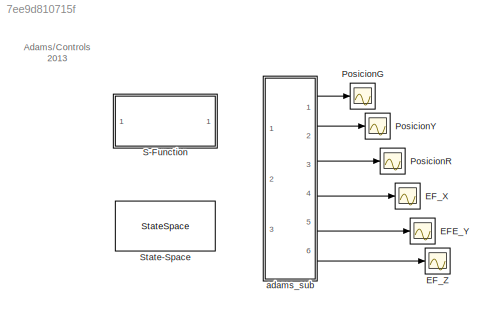
MODEL slx_7ee9d810715f
KIND model
BLOCK [Scope] EFE_Y    
  Floating = off
  NumInputPorts = 1
  Ports = [1]
  ShowLegends = off
BLOCK [Scope] EF_X     
  Floating = off
  NumInputPorts = 1
  Ports = [1]
  ShowLegends = off
BLOCK [Scope] EF_Z     
  Floating = off
  NumInputPorts = 1
  Ports = [1]
  ShowLegends = off
BLOCK [Scope] PosicionG
  Floating = off
  NumInputPorts = 1
  Ports = [1]
  ShowLegends = off
BLOCK [Scope] PosicionR
  Floating = off
  NumInputPorts = 1
  Ports = [1]
  ShowLegends = off
BLOCK [Scope] PosicionY
  Floating = off
  NumInputPorts = 1
  Ports = [1]
  ShowLegends = off
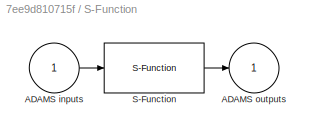
BLOCK [SubSystem] S-Function
  InitFcn = clear mex
  LoadFcn = %check based on dialog box setting for when setting by popup menu                                             \nif exist('ADAMS_solver_type')                                                                                 \n  if strcmp(ADAMS_solver_type,'C++')                                                                          \n    set_param(gcb,'exetyp','C++');                                 ...<+3488ch>
  OpenFcn = open_system(gcb,'mask')                                                                                                                          \nif not(exist('set_some_params_states'))                                                                                                          \n                                                                                                            ...<+625ch>
  Ports = [1, 1]
  RequestExecContextInheritance = off
BLOCK [Inport] S-Function/ADAMS inputs
  IconDisplay = Port number
BLOCK [Outport] S-Function/ADAMS outputs
  IconDisplay = Port number
  InitialOutput = 0
BLOCK [S-Function] S-Function/S-Function
  EnableBusSupport = off
  FunctionName = adams_plant
  Parameters = exevie,exesol,stat,outfil,nampre,o_rate,nam_in,namout,dft,modsim,modani,dt_out,inicmd,exetyp,comtyp,ada_host, workdir,pin_interp_order,pout_extrap_order,pin_extrap_order,pout_interp_order,simulink_lead_cosim
  Ports = [1, 1]
  StopFcn = clear mex
BLOCK [StateSpace] State-Space
  A = ADAMS_a
  B = ADAMS_b
  C = ADAMS_c
  D = ADAMS_d
  Ports = [1, 1]
  X0 = 0
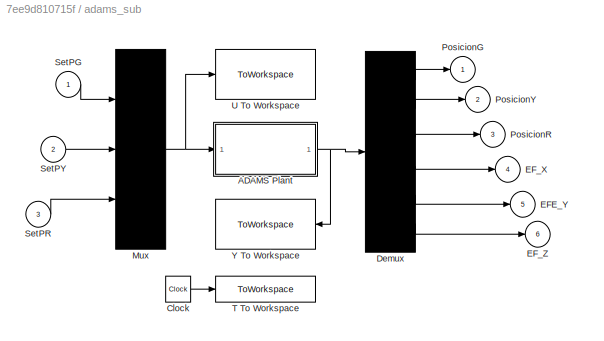
BLOCK [SubSystem] adams_sub
  Ports = [3, 6]
  RequestExecContextInheritance = off
  ShowPortLabels = none
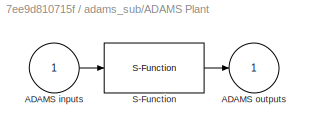
BLOCK [SubSystem] adams_sub/ADAMS Plant
  InitFcn = clear mex
  LoadFcn = %check based on dialog box setting for when setting by popup menu                                             \nif exist('ADAMS_solver_type')                                                                                 \n  if strcmp(ADAMS_solver_type,'C++')                                                                          \n    set_param(gcb,'exetyp','C++');                                 ...<+3488ch>
  OpenFcn = open_system(gcb,'mask')                                                                                                                          \nif not(exist('set_some_params_states'))                                                                                                          \n                                                                                                            ...<+625ch>
  Ports = [1, 1]
  RequestExecContextInheritance = off
BLOCK [Inport] adams_sub/ADAMS Plant/ADAMS inputs
  IconDisplay = Port number
BLOCK [Outport] adams_sub/ADAMS Plant/ADAMS outputs
  IconDisplay = Port number
  InitialOutput = 0
BLOCK [S-Function] adams_sub/ADAMS Plant/S-Function
  EnableBusSupport = off
  FunctionName = adams_plant
  Parameters = exevie,exesol,stat,outfil,nampre,o_rate,nam_in,namout,dft,modsim,modani,dt_out,inicmd,exetyp,comtyp,ada_host, workdir,pin_interp_order,pout_extrap_order,pin_extrap_order,pout_interp_order,simulink_lead_cosim
  Ports = [1, 1]
  StopFcn = clear mex
BLOCK [Clock] adams_sub/Clock
BLOCK [Demux] adams_sub/Demux
  Outputs = 6
  Ports = [1, 6]
BLOCK [Outport] adams_sub/EFE_Y    
  IconDisplay = Port number
  Port = 5
BLOCK [Outport] adams_sub/EF_X     
  IconDisplay = Port number
  Port = 4
BLOCK [Outport] adams_sub/EF_Z     
  IconDisplay = Port number
  Port = 6
BLOCK [Mux] adams_sub/Mux
  Inputs = 3
  Ports = [3, 1]
BLOCK [Outport] adams_sub/PosicionG
  IconDisplay = Port number
BLOCK [Outport] adams_sub/PosicionR
  IconDisplay = Port number
  Port = 3
BLOCK [Outport] adams_sub/PosicionY
  IconDisplay = Port number
  Port = 2
BLOCK [Inport] adams_sub/SetPG
  IconDisplay = Port number
BLOCK [Inport] adams_sub/SetPR
  IconDisplay = Port number
  Port = 3
BLOCK [Inport] adams_sub/SetPY
  IconDisplay = Port number
  Port = 2
BLOCK [ToWorkspace] adams_sub/T To Workspace
  MaxDataPoints = 100000
  Ports = [1]
  VariableName = ADAMS_tout
BLOCK [ToWorkspace] adams_sub/U To Workspace
  MaxDataPoints = 100000
  Ports = [1]
  VariableName = ADAMS_uout
BLOCK [ToWorkspace] adams_sub/Y To Workspace
  MaxDataPoints = 100000
  Ports = [1]
  VariableName = ADAMS_yout
ANNOTATION (root): Adams/Controls 2013
LINE S-Function/ADAMS inputs:1 -> S-Function/S-Function:1
LINE S-Function/S-Function:1 -> S-Function/ADAMS outputs:1
LINE adams_sub/ADAMS Plant/ADAMS inputs:1 -> adams_sub/ADAMS Plant/S-Function:1
LINE adams_sub/ADAMS Plant/S-Function:1 -> adams_sub/ADAMS Plant/ADAMS outputs:1
NET adams_sub/ADAMS Plant:1 -> adams_sub/Demux:1, adams_sub/Y To Workspace:1
LINE adams_sub/Clock:1 -> adams_sub/T To Workspace:1
LINE adams_sub/Demux:1 -> adams_sub/PosicionG:1
LINE adams_sub/Demux:2 -> adams_sub/PosicionY:1
LINE adams_sub/Demux:3 -> adams_sub/PosicionR:1
LINE adams_sub/Demux:4 -> adams_sub/EF_X     :1
LINE adams_sub/Demux:5 -> adams_sub/EFE_Y    :1
LINE adams_sub/Demux:6 -> adams_sub/EF_Z     :1
NET adams_sub/Mux:1 -> adams_sub/ADAMS Plant:1, adams_sub/U To Workspace:1
LINE adams_sub/SetPG:1 -> adams_sub/Mux:1
LINE adams_sub/SetPR:1 -> adams_sub/Mux:3
LINE adams_sub/SetPY:1 -> adams_sub/Mux:2
LINE adams_sub:1 -> PosicionG:1
LINE adams_sub:2 -> PosicionY:1
LINE adams_sub:3 -> PosicionR:1
LINE adams_sub:4 -> EF_X     :1
LINE adams_sub:5 -> EFE_Y    :1
LINE adams_sub:6 -> EF_Z     :1
note: NET lines group one-source signal fan-out (src -> all destinations, sorted); 1:1 wires keep LINE
